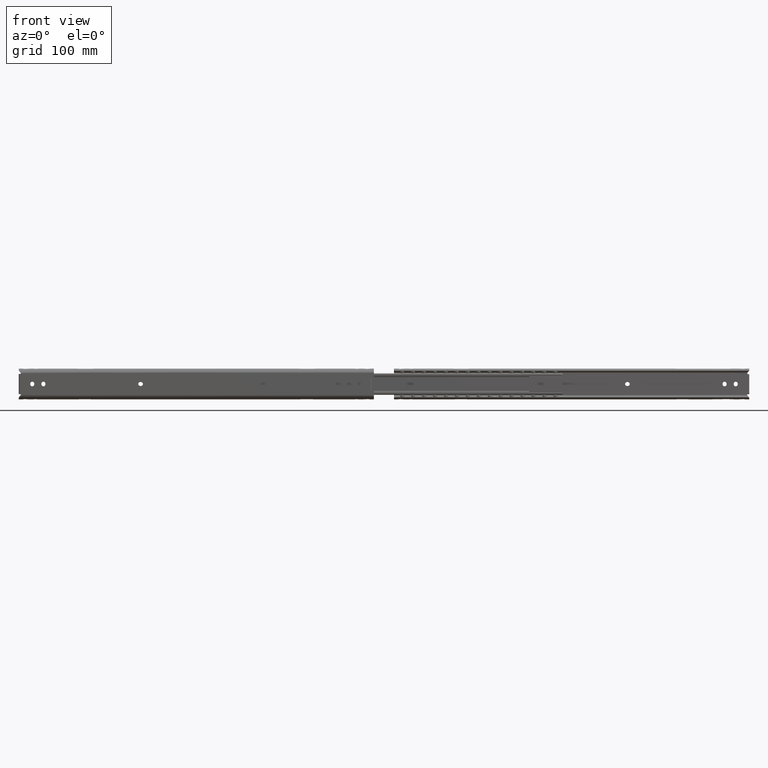
[diagram: clean part render]
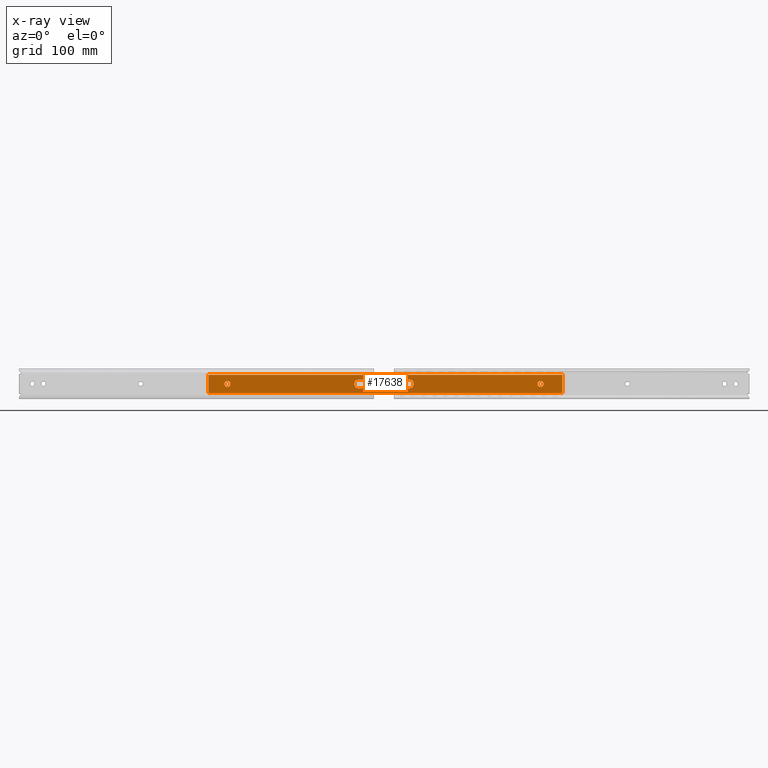
[diagram: x-ray — body ghosted, one internal face saturated and labeled with its STEP entity id]
A machine part, front view, then the same camera in x-ray: the body is ghosted and one INTERNAL B-rep face — a face not visible from any outside direction — is saturated and labeled: STEP entity #17638.
In plain terms, the highlighted face is a freeform B-spline surface patch.
Its self-contained STEP definition (entity closure, byte-faithful):
#15221=CARTESIAN_POINT('',(-599.893471794337070,-9.600000000000001,0.213669890651932));
#15222=VERTEX_POINT('',#15221);
#15228=CARTESIAN_POINT('',(-596.400000000000090,-9.600000000000000,3.500000000000000));
#15229=VERTEX_POINT('',#15228);
#15230=CARTESIAN_POINT('',(-596.400000000000090,-9.600000000000000,3.500000000000000));
#15231=CARTESIAN_POINT('',(-599.692471229864400,-9.600000000000000,3.500000000000000));
#15232=CARTESIAN_POINT('',(-599.893471794337070,-9.600000000000001,0.213669890651932));
#15240=(BOUNDED_CURVE()B_SPLINE_CURVE(2,(#15230,#15231,#15232),.UNSPECIFIED.,.F.,.U.)B_SPLINE_CURVE_WITH_KNOTS((3,3),(0.500000000000000,0.739332962016752),.UNSPECIFIED.)CURVE()GEOMETRIC_REPRESENTATION_ITEM()RATIONAL_B_SPLINE_CURVE((1.0,0.719603993547023,0.976072041190520))REPRESENTATION_ITEM(''));
#15241=EDGE_CURVE('',#15229,#15222,#15240,.T.);
#15243=CARTESIAN_POINT('',(-592.924466657923400,-9.600000000000000,-0.413119822949311));
#15244=VERTEX_POINT('',#15243);
#15245=CARTESIAN_POINT('',(-592.924466657923400,-9.600000000000000,-0.413119822949311));
#15246=CARTESIAN_POINT('',(-592.900000000000090,-9.600000000000000,-0.207284420449792));
#15247=CARTESIAN_POINT('',(-592.900000000000090,-9.600000000000000,-2.370138E-018));
#15248=CARTESIAN_POINT('',(-592.900000000000200,-9.600000000000000,3.500000000000000));
#15249=CARTESIAN_POINT('',(-596.400000000000090,-9.600000000000000,3.500000000000000));
#15257=(BOUNDED_CURVE()B_SPLINE_CURVE(2,(#15245,#15246,#15247,#15248,#15249),.UNSPECIFIED.,.F.,.U.)B_SPLINE_CURVE_WITH_KNOTS((3,2,3),(0.229562473355113,0.250000000000000,0.500000000000000),.UNSPECIFIED.)CURVE()GEOMETRIC_REPRESENTATION_ITEM()RATIONAL_B_SPLINE_CURVE((0.956026753873237,0.976055948145573,1.0,0.707106781186547,1.0))REPRESENTATION_ITEM(''));
#15258=EDGE_CURVE('',#15244,#15229,#15257,.T.);
#15302=CARTESIAN_POINT('',(-596.400000000000090,-9.600000000000000,-3.500000000000000));
#15303=VERTEX_POINT('',#15302);
#15304=CARTESIAN_POINT('',(-596.400000000000090,-9.600000000000000,-3.500000000000000));
#15305=CARTESIAN_POINT('',(-593.291389162143790,-9.600000000000000,-3.499999999999999));
#15306=CARTESIAN_POINT('',(-592.924466657923400,-9.600000000000000,-0.413119822949311));
#15314=(BOUNDED_CURVE()B_SPLINE_CURVE(2,(#15304,#15305,#15306),.UNSPECIFIED.,.F.,.U.)B_SPLINE_CURVE_WITH_KNOTS((3,3),(0.0,0.229562473355113),.UNSPECIFIED.)CURVE()GEOMETRIC_REPRESENTATION_ITEM()RATIONAL_B_SPLINE_CURVE((1.0,0.731050833040974,0.956026753873237))REPRESENTATION_ITEM(''));
#15315=EDGE_CURVE('',#15303,#15244,#15314,.T.);
#15317=CARTESIAN_POINT('',(-599.893471794336960,-9.600000000000001,0.213669890651932));
#15318=CARTESIAN_POINT('',(-599.899999999999980,-9.600000000000000,0.106934673831387));
#15319=CARTESIAN_POINT('',(-599.899999999999980,-9.600000000000000,-2.370138E-018));
#15320=CARTESIAN_POINT('',(-599.899999999999980,-9.600000000000000,-3.500000000000000));
#15321=CARTESIAN_POINT('',(-596.400000000000090,-9.600000000000000,-3.500000000000000));
#15329=(BOUNDED_CURVE()B_SPLINE_CURVE(2,(#15317,#15318,#15319,#15320,#15321),.UNSPECIFIED.,.F.,.U.)B_SPLINE_CURVE_WITH_KNOTS((3,2,3),(0.739332962016751,0.750000000000000,1.0),.UNSPECIFIED.)CURVE()GEOMETRIC_REPRESENTATION_ITEM()RATIONAL_B_SPLINE_CURVE((0.976072041190518,0.987502787639523,1.0,0.707106781186547,1.0))REPRESENTATION_ITEM(''));
#15330=EDGE_CURVE('',#15222,#15303,#15329,.T.);
#15403=CARTESIAN_POINT('',(-242.099866730655490,-9.600000000000000,-0.030542882167967));
#15404=VERTEX_POINT('',#15403);
#15410=CARTESIAN_POINT('',(-238.599999999999990,-9.600000000000000,3.500000000000000));
#15411=VERTEX_POINT('',#15410);
#15412=CARTESIAN_POINT('',(-238.599999999999990,-9.600000000000000,3.500000000000000));
#15413=CARTESIAN_POINT('',(-242.100000000000080,-9.600000000000000,3.500000000000000));
#15414=CARTESIAN_POINT('',(-242.099999999999990,-9.600000000000000,-2.370138E-018));
#15415=CARTESIAN_POINT('',(-242.100000000000020,-9.600000000000000,-0.015271735796566));
#15416=CARTESIAN_POINT('',(-242.099866730655520,-9.600000000000000,-0.030542882167967));
#15424=(BOUNDED_CURVE()B_SPLINE_CURVE(2,(#15412,#15413,#15414,#15415,#15416),.UNSPECIFIED.,.F.,.U.)B_SPLINE_CURVE_WITH_KNOTS((3,2,3),(0.500000000000000,0.750000000000000,0.751539895132558),.UNSPECIFIED.)CURVE()GEOMETRIC_REPRESENTATION_ITEM()RATIONAL_B_SPLINE_CURVE((1.0,0.707106781186547,1.0,0.998195900631960,0.996414026254604))REPRESENTATION_ITEM(''));
#15425=EDGE_CURVE('',#15411,#15404,#15424,.T.);
#15427=CARTESIAN_POINT('',(-235.127068252252800,-9.599999999999998,0.434448012412891));
#15428=VERTEX_POINT('',#15427);
#15429=CARTESIAN_POINT('',(-235.127068252252830,-9.599999999999998,0.434448012412891));
#15430=CARTESIAN_POINT('',(-235.510554908678730,-9.600000000000001,3.500000000000000));
#15431=CARTESIAN_POINT('',(-238.599999999999990,-9.600000000000000,3.500000000000000));
#15439=(BOUNDED_CURVE()B_SPLINE_CURVE(2,(#15429,#15430,#15431),.UNSPECIFIED.,.F.,.U.)B_SPLINE_CURVE_WITH_KNOTS((3,3),(0.271473929469267,0.500000000000000),.UNSPECIFIED.)CURVE()GEOMETRIC_REPRESENTATION_ITEM()RATIONAL_B_SPLINE_CURVE((0.954005429307196,0.732265054477854,1.0))REPRESENTATION_ITEM(''));
#15440=EDGE_CURVE('',#15428,#15411,#15439,.T.);
#15490=CARTESIAN_POINT('',(-238.599999999999990,-9.600000000000000,-3.500000000000000));
#15491=VERTEX_POINT('',#15490);
#15492=CARTESIAN_POINT('',(-238.599999999999990,-9.600000000000000,-3.500000000000000));
#15493=CARTESIAN_POINT('',(-235.099999999999970,-9.600000000000000,-3.500000000000000));
#15494=CARTESIAN_POINT('',(-235.099999999999990,-9.600000000000000,-2.370138E-018));
#15495=CARTESIAN_POINT('',(-235.100000000000050,-9.600000000000000,0.218067251560814));
#15496=CARTESIAN_POINT('',(-235.127068252252800,-9.599999999999998,0.434448012412891));
#15504=(BOUNDED_CURVE()B_SPLINE_CURVE(2,(#15492,#15493,#15494,#15495,#15496),.UNSPECIFIED.,.F.,.U.)B_SPLINE_CURVE_WITH_KNOTS((3,2,3),(0.0,0.250000000000000,0.271473929469267),.UNSPECIFIED.)CURVE()GEOMETRIC_REPRESENTATION_ITEM()RATIONAL_B_SPLINE_CURVE((1.0,0.707106781186547,1.0,0.974841726708694,0.954005429307196))REPRESENTATION_ITEM(''));
#15505=EDGE_CURVE('',#15491,#15428,#15504,.T.);
#15507=CARTESIAN_POINT('',(-242.099866730655520,-9.600000000000000,-0.030542882167967));
#15508=CARTESIAN_POINT('',(-242.069589221371640,-9.600000000000000,-3.499999999999999));
#15509=CARTESIAN_POINT('',(-238.599999999999990,-9.600000000000000,-3.500000000000000));
#15517=(BOUNDED_CURVE()B_SPLINE_CURVE(2,(#15507,#15508,#15509),.UNSPECIFIED.,.F.,.U.)B_SPLINE_CURVE_WITH_KNOTS((3,3),(0.751539895132558,1.0),.UNSPECIFIED.)CURVE()GEOMETRIC_REPRESENTATION_ITEM()RATIONAL_B_SPLINE_CURVE((0.996414026254604,0.708910880554587,1.0))REPRESENTATION_ITEM(''));
#15518=EDGE_CURVE('',#15404,#15491,#15517,.T.);
#15914=CARTESIAN_POINT('',(-443.399999999999980,-9.600000000000000,4.999999999999800));
#15915=VERTEX_POINT('',#15914);
#15930=CARTESIAN_POINT('',(-446.399999999999980,-9.600000000000000,4.999999999999800));
#15931=VERTEX_POINT('',#15930);
#15937=CARTESIAN_POINT('',(-443.399999999999980,-9.600000000000000,4.999999999999800));
#15938=CARTESIAN_POINT('',(-446.399999999999980,-9.600000000000000,4.999999999999800));
#15939=QUASI_UNIFORM_CURVE('',1,(#15937,#15938),.UNSPECIFIED.,.F.,.U.);
#15940=EDGE_CURVE('',#15915,#15931,#15939,.T.);
#15981=CARTESIAN_POINT('',(-446.399999999999980,-9.600000000000000,-5.0));
#15982=VERTEX_POINT('',#15981);
#15988=CARTESIAN_POINT('',(-446.399999999999980,-9.600000000000000,5.0));
#15989=CARTESIAN_POINT('',(-451.400000000000030,-9.600000000000000,5.000000000000001));
#15990=CARTESIAN_POINT('',(-451.399999999999980,-9.600000000000000,-2.370138E-018));
#15991=CARTESIAN_POINT('',(-451.400000000000030,-9.600000000000000,-5.000000000000001));
#15992=CARTESIAN_POINT('',(-446.399999999999980,-9.600000000000000,-5.0));
#16000=(BOUNDED_CURVE()B_SPLINE_CURVE(2,(#15988,#15989,#15990,#15991,#15992),.UNSPECIFIED.,.F.,.U.)B_SPLINE_CURVE_WITH_KNOTS((3,2,3),(0.0,0.500000000000000,1.0),.UNSPECIFIED.)CURVE()GEOMETRIC_REPRESENTATION_ITEM()RATIONAL_B_SPLINE_CURVE((1.0,0.707106781186548,1.0,0.707106781186548,1.0))REPRESENTATION_ITEM(''));
#16001=EDGE_CURVE('',#15931,#15982,#16000,.T.);
#16019=CARTESIAN_POINT('',(-443.399999999999980,-9.600000000000000,-5.0));
#16020=VERTEX_POINT('',#16019);
#16026=CARTESIAN_POINT('',(-446.399999999999980,-9.600000000000000,-5.0));
#16027=CARTESIAN_POINT('',(-443.399999999999980,-9.600000000000000,-5.0));
#16028=QUASI_UNIFORM_CURVE('',1,(#16026,#16027),.UNSPECIFIED.,.F.,.U.);
#16029=EDGE_CURVE('',#15982,#16020,#16028,.T.);
#16069=CARTESIAN_POINT('',(-443.399999999999980,-9.600000000000000,-5.0));
#16070=CARTESIAN_POINT('',(-438.400000000000090,-9.600000000000000,-5.000000000000001));
#16071=CARTESIAN_POINT('',(-438.399999999999980,-9.600000000000000,-2.370138E-018));
#16072=CARTESIAN_POINT('',(-438.400000000000090,-9.600000000000000,5.000000000000001));
#16073=CARTESIAN_POINT('',(-443.399999999999980,-9.600000000000000,5.0));
#16081=(BOUNDED_CURVE()B_SPLINE_CURVE(2,(#16069,#16070,#16071,#16072,#16073),.UNSPECIFIED.,.F.,.U.)B_SPLINE_CURVE_WITH_KNOTS((3,2,3),(0.0,0.500000000000000,1.0),.UNSPECIFIED.)CURVE()GEOMETRIC_REPRESENTATION_ITEM()RATIONAL_B_SPLINE_CURVE((1.0,0.707106781186548,1.0,0.707106781186548,1.0))REPRESENTATION_ITEM(''));
#16082=EDGE_CURVE('',#16020,#15915,#16081,.T.);
#16105=CARTESIAN_POINT('',(-391.600000000000020,-9.600000000000000,5.0));
#16106=VERTEX_POINT('',#16105);
#16131=CARTESIAN_POINT('',(-391.600000000000020,-9.600000000000000,-5.0));
#16132=VERTEX_POINT('',#16131);
#16138=CARTESIAN_POINT('',(-391.600000000000020,-9.600000000000000,5.0));
#16139=CARTESIAN_POINT('',(-396.600000000000020,-9.600000000000000,5.000000000000001));
#16140=CARTESIAN_POINT('',(-396.600000000000020,-9.600000000000000,-2.370138E-018));
#16141=CARTESIAN_POINT('',(-396.600000000000020,-9.600000000000000,-5.000000000000001));
#16142=CARTESIAN_POINT('',(-391.600000000000020,-9.600000000000000,-5.0));
#16150=(BOUNDED_CURVE()B_SPLINE_CURVE(2,(#16138,#16139,#16140,#16141,#16142),.UNSPECIFIED.,.F.,.U.)B_SPLINE_CURVE_WITH_KNOTS((3,2,3),(0.0,0.500000000000000,1.0),.UNSPECIFIED.)CURVE()GEOMETRIC_REPRESENTATION_ITEM()RATIONAL_B_SPLINE_CURVE((1.0,0.707106781186548,1.0,0.707106781186548,1.0))REPRESENTATION_ITEM(''));
#16151=EDGE_CURVE('',#16106,#16132,#16150,.T.);
#16169=CARTESIAN_POINT('',(-388.600000000000020,-9.600000000000000,-5.0));
#16170=VERTEX_POINT('',#16169);
#16176=CARTESIAN_POINT('',(-391.600000000000020,-9.600000000000000,-5.0));
#16177=CARTESIAN_POINT('',(-388.600000000000020,-9.600000000000000,-5.0));
#16178=QUASI_UNIFORM_CURVE('',1,(#16176,#16177),.UNSPECIFIED.,.F.,.U.);
#16179=EDGE_CURVE('',#16132,#16170,#16178,.T.);
#16220=CARTESIAN_POINT('',(-388.600000000000020,-9.600000000000000,5.0));
#16221=VERTEX_POINT('',#16220);
#16227=CARTESIAN_POINT('',(-388.600000000000020,-9.600000000000000,-5.0));
#16228=CARTESIAN_POINT('',(-383.600000000000080,-9.600000000000000,-5.000000000000001));
#16229=CARTESIAN_POINT('',(-383.600000000000020,-9.600000000000000,-2.370138E-018));
#16230=CARTESIAN_POINT('',(-383.600000000000080,-9.600000000000000,5.000000000000001));
#16231=CARTESIAN_POINT('',(-388.600000000000020,-9.600000000000000,5.0));
#16239=(BOUNDED_CURVE()B_SPLINE_CURVE(2,(#16227,#16228,#16229,#16230,#16231),.UNSPECIFIED.,.F.,.U.)B_SPLINE_CURVE_WITH_KNOTS((3,2,3),(0.0,0.500000000000000,1.0),.UNSPECIFIED.)CURVE()GEOMETRIC_REPRESENTATION_ITEM()RATIONAL_B_SPLINE_CURVE((1.0,0.707106781186548,1.0,0.707106781186548,1.0))REPRESENTATION_ITEM(''));
#16240=EDGE_CURVE('',#16170,#16221,#16239,.T.);
#16257=CARTESIAN_POINT('',(-388.600000000000020,-9.600000000000000,5.0));
#16258=CARTESIAN_POINT('',(-391.600000000000020,-9.600000000000000,5.0));
#16259=QUASI_UNIFORM_CURVE('',1,(#16257,#16258),.UNSPECIFIED.,.F.,.U.);
#16260=EDGE_CURVE('',#16221,#16106,#16259,.T.);
#16953=CARTESIAN_POINT('',(-213.599999999999990,-9.600000000000000,-10.427061000000000));
#16954=VERTEX_POINT('',#16953);
#16970=CARTESIAN_POINT('',(-213.599999999999990,-9.600000000000000,10.427061000000000));
#16971=VERTEX_POINT('',#16970);
#16972=CARTESIAN_POINT('',(-213.599999999999990,-9.600000000000000,-10.427061000000000));
#16973=CARTESIAN_POINT('',(-213.599999999999990,-9.600000000000000,10.427061000000000));
#16974=QUASI_UNIFORM_CURVE('',1,(#16972,#16973),.UNSPECIFIED.,.F.,.U.);
#16975=EDGE_CURVE('',#16954,#16971,#16974,.T.);
#17197=CARTESIAN_POINT('',(-618.399999999999980,-9.600000000000000,10.427061000000000));
#17198=VERTEX_POINT('',#17197);
#17214=CARTESIAN_POINT('',(-618.399999999999980,-9.600000000000000,-10.427061000000000));
#17215=VERTEX_POINT('',#17214);
#17216=CARTESIAN_POINT('',(-618.399999999999980,-9.600000000000000,-10.427061000000000));
#17217=CARTESIAN_POINT('',(-618.399999999999980,-9.600000000000000,10.427061000000000));
#17218=QUASI_UNIFORM_CURVE('',1,(#17216,#17217),.UNSPECIFIED.,.F.,.U.);
#17219=EDGE_CURVE('',#17215,#17198,#17218,.T.);
#17260=CARTESIAN_POINT('',(-618.399999999999980,-9.600000000000000,-10.427061000000000));
#17261=CARTESIAN_POINT('',(-213.599999999999990,-9.600000000000000,-10.427061000000000));
#17262=QUASI_UNIFORM_CURVE('',1,(#17260,#17261),.UNSPECIFIED.,.F.,.U.);
#17263=EDGE_CURVE('',#17215,#16954,#17262,.T.);
#17487=CARTESIAN_POINT('',(-618.399999999999980,-9.600000000000000,10.427061000000000));
#17488=CARTESIAN_POINT('',(-213.599999999999990,-9.600000000000000,10.427061000000000));
#17489=QUASI_UNIFORM_CURVE('',1,(#17487,#17488),.UNSPECIFIED.,.F.,.U.);
#17490=EDGE_CURVE('',#17198,#16971,#17489,.T.);
#17603=CARTESIAN_POINT('',(-193.380243138323810,-9.600000000000000,11.468724549244239));
#17604=CARTESIAN_POINT('',(-193.380243138323810,-9.600000000000000,-11.468724922145000));
#17605=CARTESIAN_POINT('',(-638.619800292004700,-9.600000000000000,11.468724549244239));
#17606=CARTESIAN_POINT('',(-638.619800292004700,-9.600000000000000,-11.468724922145000));
#17607=B_SPLINE_SURFACE_WITH_KNOTS('',1,1,((#17603,#17605),(#17604,#17606)),.UNSPECIFIED.,.F.,.F.,.U.,(2,2),(2,2),(0.0,22.937449471389240),(0.0,445.239557153680780),.UNSPECIFIED.);
#17608=ORIENTED_EDGE('',*,*,#16975,.F.);
#17609=ORIENTED_EDGE('',*,*,#17263,.F.);
#17610=ORIENTED_EDGE('',*,*,#17219,.T.);
#17611=ORIENTED_EDGE('',*,*,#17490,.T.);
#17612=EDGE_LOOP('',(#17608,#17609,#17610,#17611));
#17613=FACE_OUTER_BOUND('',#17612,.T.);
#17614=ORIENTED_EDGE('',*,*,#16240,.T.);
#17615=ORIENTED_EDGE('',*,*,#16260,.T.);
#17616=ORIENTED_EDGE('',*,*,#16151,.T.);
#17617=ORIENTED_EDGE('',*,*,#16179,.T.);
#17618=EDGE_LOOP('',(#17614,#17615,#17616,#17617));
#17619=FACE_BOUND('',#17618,.T.);
#17620=ORIENTED_EDGE('',*,*,#16029,.T.);
#17621=ORIENTED_EDGE('',*,*,#16082,.T.);
#17622=ORIENTED_EDGE('',*,*,#15940,.T.);
#17623=ORIENTED_EDGE('',*,*,#16001,.T.);
#17624=EDGE_LOOP('',(#17620,#17621,#17622,#17623));
#17625=FACE_BOUND('',#17624,.T.);
#17626=ORIENTED_EDGE('',*,*,#15425,.T.);
#17627=ORIENTED_EDGE('',*,*,#15518,.T.);
#17628=ORIENTED_EDGE('',*,*,#15505,.T.);
#17629=ORIENTED_EDGE('',*,*,#15440,.T.);
#17630=EDGE_LOOP('',(#17626,#17627,#17628,#17629));
#17631=FACE_BOUND('',#17630,.T.);
#17632=ORIENTED_EDGE('',*,*,#15241,.T.);
#17633=ORIENTED_EDGE('',*,*,#15330,.T.);
#17634=ORIENTED_EDGE('',*,*,#15315,.T.);
#17635=ORIENTED_EDGE('',*,*,#15258,.T.);
#17636=EDGE_LOOP('',(#17632,#17633,#17634,#17635));
#17637=FACE_BOUND('',#17636,.T.);
#17638=ADVANCED_FACE('',(#17613,#17619,#17625,#17631,#17637),#17607,.T.);